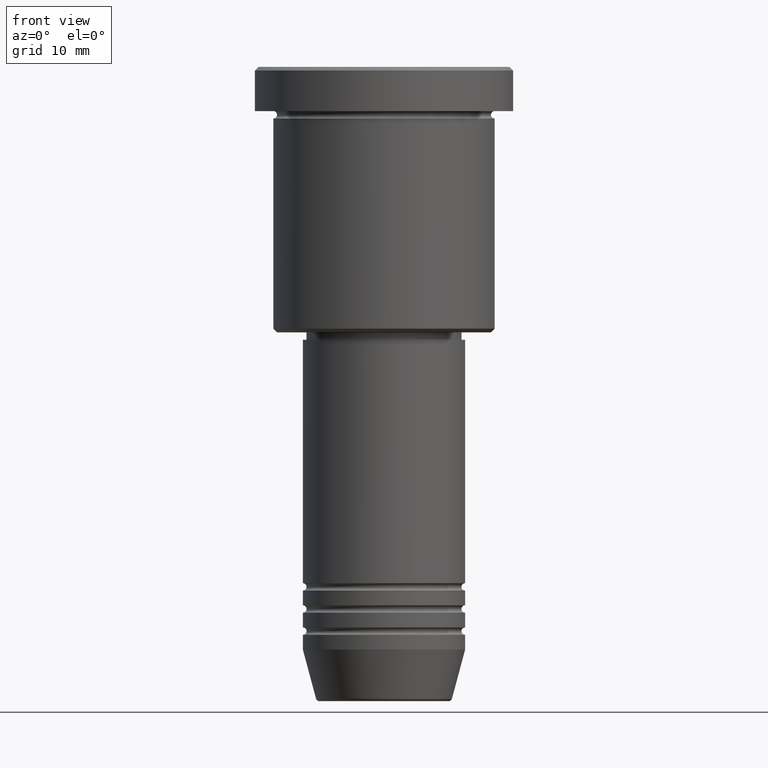
[diagram: clean part render]
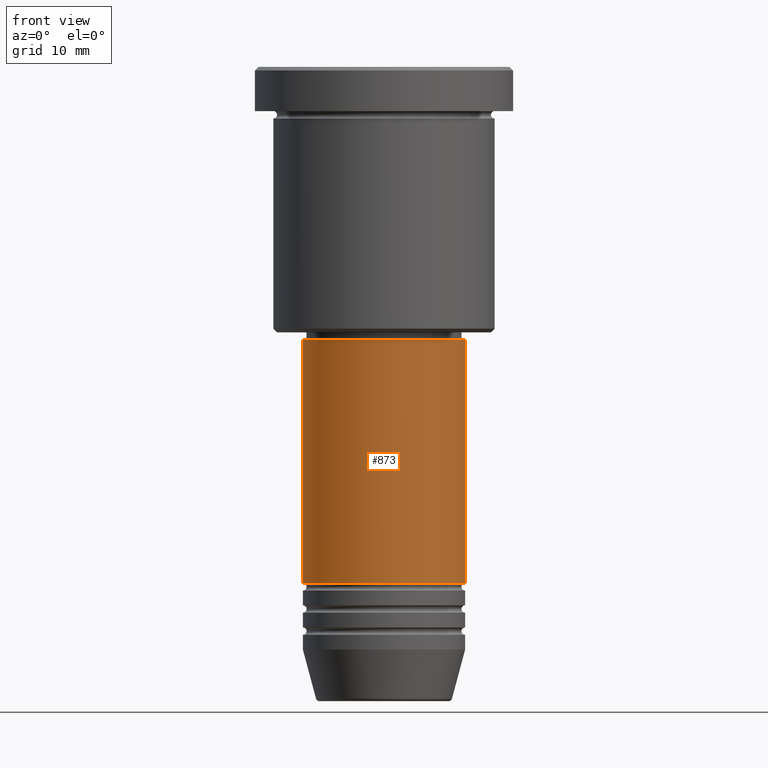
[diagram: same view with one face highlighted and labeled with its STEP entity id]
A machine part, front view. The second image highlights one B-rep face of the part: STEP entity #873.
In plain terms, the highlighted cylindrical surface (partial cylindrical patch) has radius 11 mm, axis along (-0, -0, 1).
Its self-contained STEP definition (entity closure, byte-faithful):
#44 = FACE_OUTER_BOUND ( 'NONE', #666, .T. ) ;
#68 = AXIS2_PLACEMENT_3D ( 'NONE', #891, #519, #157 ) ;
#74 = EDGE_CURVE ( 'NONE', #379, #647, #406, .T. ) ;
#103 = DIRECTION ( 'NONE',  ( -0.000000000000000000, -0.000000000000000000, 1.000000000000000000 ) ) ;
#106 = ORIENTED_EDGE ( 'NONE', *, *, #74, .T. ) ;
#108 = AXIS2_PLACEMENT_3D ( 'NONE', #813, #796, #1100 ) ;
#138 = CARTESIAN_POINT ( 'NONE',  ( -11.00000000000000000, 1.347111479062088405E-15, -36.99999999999998579 ) ) ;
#157 = DIRECTION ( 'NONE',  ( 1.000000000000000000, 0.000000000000000000, 0.000000000000000000 ) ) ;
#159 = VECTOR ( 'NONE', #103, 1000.000000000000000 ) ;
#183 = CARTESIAN_POINT ( 'NONE',  ( 11.00000000000000000, 0.000000000000000000, -69.99999999999998579 ) ) ;
#216 = ORIENTED_EDGE ( 'NONE', *, *, #953, .F. ) ;
#265 = DIRECTION ( 'NONE',  ( -0.000000000000000000, -0.000000000000000000, 1.000000000000000000 ) ) ;
#271 = ORIENTED_EDGE ( 'NONE', *, *, #767, .T. ) ;
#379 = VERTEX_POINT ( 'NONE', #582 ) ;
#406 = CIRCLE ( 'NONE', #108, 11.00000000000000000 ) ;
#447 = VERTEX_POINT ( 'NONE', #138 ) ;
#519 = DIRECTION ( 'NONE',  ( -0.000000000000000000, -0.000000000000000000, 1.000000000000000000 ) ) ;
#582 = CARTESIAN_POINT ( 'NONE',  ( -11.00000000000000000, 1.347111479062088405E-15, -69.99999999999998579 ) ) ;
#599 = DIRECTION ( 'NONE',  ( -0.000000000000000000, -0.000000000000000000, 1.000000000000000000 ) ) ;
#603 = CARTESIAN_POINT ( 'NONE',  ( -11.00000000000000000, 1.347111479062088405E-15, 0.000000000000000000 ) ) ;
#633 = LINE ( 'NONE', #729, #159 ) ;
#647 = VERTEX_POINT ( 'NONE', #183 ) ;
#666 = EDGE_LOOP ( 'NONE', ( #216, #106, #271, #976 ) ) ;
#685 = CYLINDRICAL_SURFACE ( 'NONE', #766, 11.00000000000000000 ) ;
#714 = VECTOR ( 'NONE', #265, 1000.000000000000000 ) ;
#715 = LINE ( 'NONE', #603, #714 ) ;
#729 = CARTESIAN_POINT ( 'NONE',  ( 11.00000000000000000, 0.000000000000000000, 0.000000000000000000 ) ) ;
#766 = AXIS2_PLACEMENT_3D ( 'NONE', #1056, #599, #955 ) ;
#767 = EDGE_CURVE ( 'NONE', #647, #1157, #633, .T. ) ;
#796 = DIRECTION ( 'NONE',  ( -0.000000000000000000, -0.000000000000000000, 1.000000000000000000 ) ) ;
#813 = CARTESIAN_POINT ( 'NONE',  ( 0.000000000000000000, 0.000000000000000000, -69.99999999999998579 ) ) ;
#873 = ADVANCED_FACE ( 'NONE', ( #44 ), #685, .T. ) ;
#889 = CIRCLE ( 'NONE', #68, 11.00000000000000000 ) ;
#891 = CARTESIAN_POINT ( 'NONE',  ( 0.000000000000000000, 0.000000000000000000, -36.99999999999998579 ) ) ;
#935 = CARTESIAN_POINT ( 'NONE',  ( 11.00000000000000000, 0.000000000000000000, -36.99999999999998579 ) ) ;
#944 = EDGE_CURVE ( 'NONE', #447, #1157, #889, .T. ) ;
#953 = EDGE_CURVE ( 'NONE', #379, #447, #715, .T. ) ;
#955 = DIRECTION ( 'NONE',  ( 1.000000000000000000, 0.000000000000000000, 0.000000000000000000 ) ) ;
#976 = ORIENTED_EDGE ( 'NONE', *, *, #944, .F. ) ;
#1056 = CARTESIAN_POINT ( 'NONE',  ( 0.000000000000000000, 0.000000000000000000, 0.000000000000000000 ) ) ;
#1100 = DIRECTION ( 'NONE',  ( 1.000000000000000000, 0.000000000000000000, 0.000000000000000000 ) ) ;
#1157 = VERTEX_POINT ( 'NONE', #935 ) ;